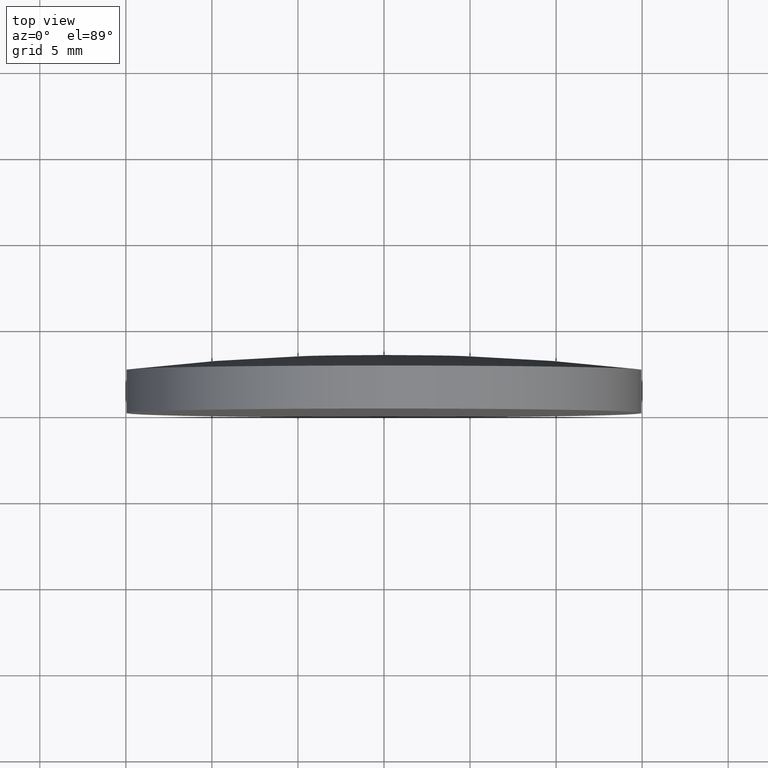
[diagram: clean part render]
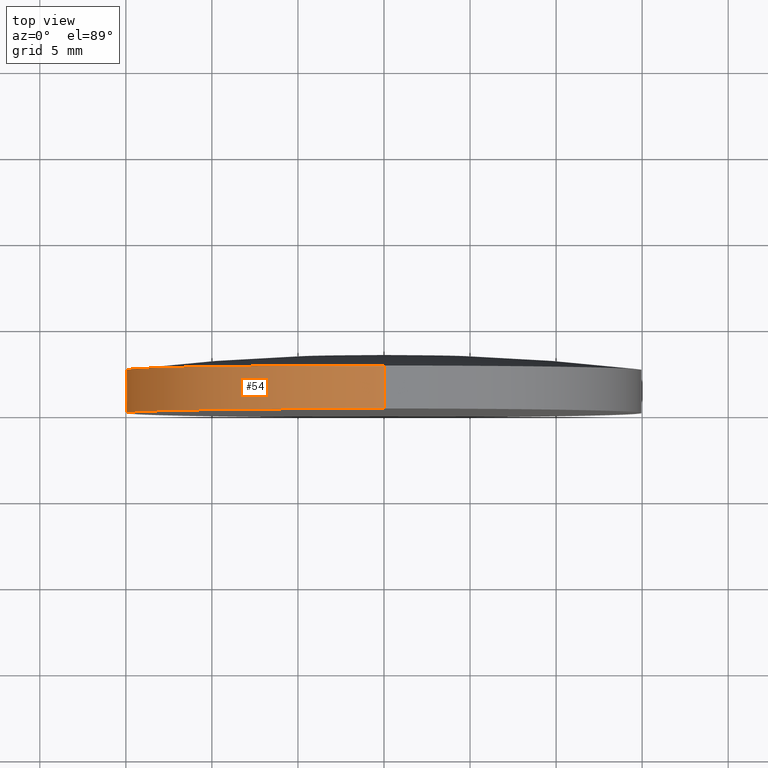
[diagram: same view with one face highlighted and labeled with its STEP entity id]
A machine part, top view. The second image highlights one B-rep face of the part: STEP entity #54.
In plain terms, the highlighted cylindrical surface (partial cylindrical patch) has radius 15 mm, axis along (-0, 1, -0).
Its self-contained STEP definition (entity closure, byte-faithful):
#2 = DIRECTION ( 'NONE',  ( -0.000000000000000000, 1.000000000000000000, -0.000000000000000000 ) ) ;
#4 = VECTOR ( 'NONE', #68, 1000.000000000000000 ) ;
#7 = EDGE_CURVE ( 'NONE', #177, #41, #111, .T. ) ;
#9 = CARTESIAN_POINT ( 'NONE',  ( 1.836970198721029589E-15, 3.370000000000000107, -15.00000000000000000 ) ) ;
#16 = FACE_OUTER_BOUND ( 'NONE', #84, .T. ) ;
#20 = VERTEX_POINT ( 'NONE', #24 ) ;
#24 = CARTESIAN_POINT ( 'NONE',  ( 0.000000000000000000, -1.734723475976807094E-15, 15.00000000000000000 ) ) ;
#26 = ORIENTED_EDGE ( 'NONE', *, *, #7, .F. ) ;
#31 = CARTESIAN_POINT ( 'NONE',  ( 0.000000000000000000, 3.370000000000000107, 0.000000000000000000 ) ) ;
#41 = VERTEX_POINT ( 'NONE', #195 ) ;
#44 = DIRECTION ( 'NONE',  ( -0.000000000000000000, 1.000000000000000000, -0.000000000000000000 ) ) ;
#53 = LINE ( 'NONE', #9, #4 ) ;
#54 = ADVANCED_FACE ( 'NONE', ( #16 ), #106, .T. ) ;
#55 = ORIENTED_EDGE ( 'NONE', *, *, #92, .T. ) ;
#63 = CARTESIAN_POINT ( 'NONE',  ( 1.836970198721026039E-15, 2.500000000000000444, -14.99999999999996980 ) ) ;
#66 = EDGE_CURVE ( 'NONE', #20, #41, #76, .T. ) ;
#68 = DIRECTION ( 'NONE',  ( -0.000000000000000000, 1.000000000000000000, -0.000000000000000000 ) ) ;
#75 = AXIS2_PLACEMENT_3D ( 'NONE', #31, #90, #155 ) ;
#76 = LINE ( 'NONE', #136, #182 ) ;
#81 = CARTESIAN_POINT ( 'NONE',  ( 1.836970198721029589E-15, -1.734723475976807094E-15, -15.00000000000000000 ) ) ;
#84 = EDGE_LOOP ( 'NONE', ( #88, #55, #126, #26 ) ) ;
#88 = ORIENTED_EDGE ( 'NONE', *, *, #189, .F. ) ;
#90 = DIRECTION ( 'NONE',  ( -0.000000000000000000, 1.000000000000000000, -0.000000000000000000 ) ) ;
#92 = EDGE_CURVE ( 'NONE', #173, #20, #191, .T. ) ;
#95 = AXIS2_PLACEMENT_3D ( 'NONE', #98, #160, #145 ) ;
#98 = CARTESIAN_POINT ( 'NONE',  ( 0.000000000000000000, 2.499999999999998224, 0.000000000000000000 ) ) ;
#106 = CYLINDRICAL_SURFACE ( 'NONE', #75, 15.00000000000000000 ) ;
#111 = CIRCLE ( 'NONE', #95, 15.00000000000000000 ) ;
#123 = CARTESIAN_POINT ( 'NONE',  ( 0.000000000000000000, -1.734723475976807094E-15, 0.000000000000000000 ) ) ;
#125 = AXIS2_PLACEMENT_3D ( 'NONE', #123, #44, #190 ) ;
#126 = ORIENTED_EDGE ( 'NONE', *, *, #66, .T. ) ;
#136 = CARTESIAN_POINT ( 'NONE',  ( 0.000000000000000000, 3.370000000000000107, 15.00000000000000000 ) ) ;
#145 = DIRECTION ( 'NONE',  ( 0.000000000000000000, 0.000000000000000000, 1.000000000000000000 ) ) ;
#155 = DIRECTION ( 'NONE',  ( 0.000000000000000000, 0.000000000000000000, 1.000000000000000000 ) ) ;
#160 = DIRECTION ( 'NONE',  ( -0.000000000000000000, 1.000000000000000000, -0.000000000000000000 ) ) ;
#173 = VERTEX_POINT ( 'NONE', #81 ) ;
#177 = VERTEX_POINT ( 'NONE', #63 ) ;
#182 = VECTOR ( 'NONE', #2, 1000.000000000000000 ) ;
#189 = EDGE_CURVE ( 'NONE', #173, #177, #53, .T. ) ;
#190 = DIRECTION ( 'NONE',  ( 0.000000000000000000, 0.000000000000000000, 1.000000000000000000 ) ) ;
#191 = CIRCLE ( 'NONE', #125, 15.00000000000000000 ) ;
#195 = CARTESIAN_POINT ( 'NONE',  ( 0.000000000000000000, 2.500000000000000444, 14.99999999999996980 ) ) ;